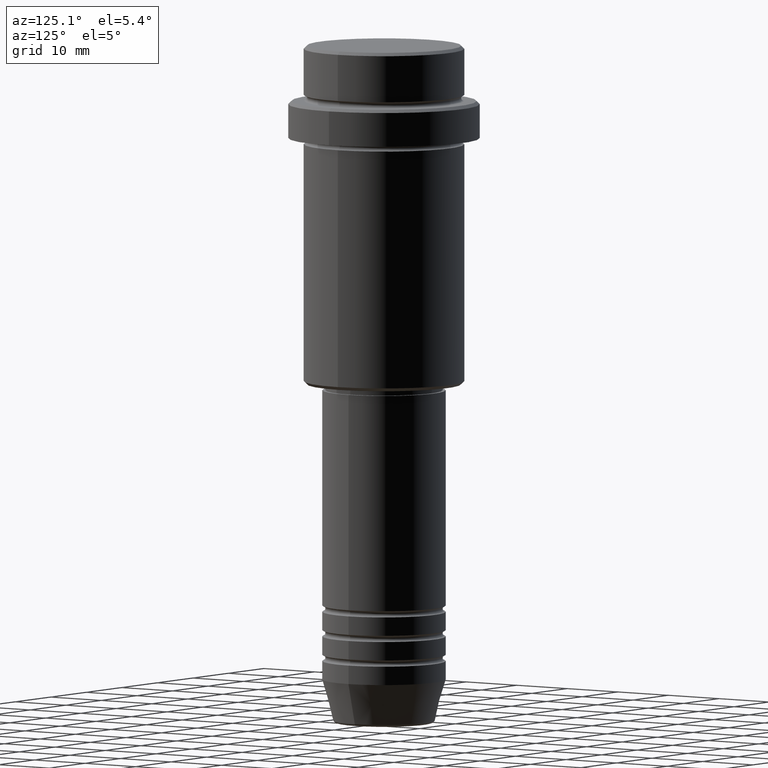
[diagram: clean part render]
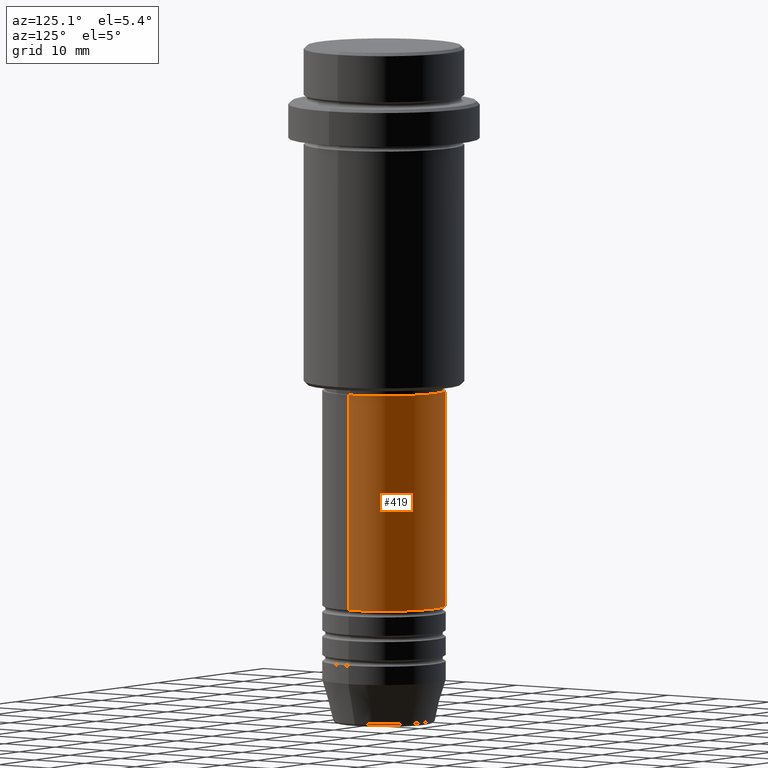
[diagram: same view with one face highlighted and labeled with its STEP entity id]
A machine part, auxiliary view. The second image highlights one B-rep face of the part: STEP entity #419.
In plain terms, the highlighted cylindrical surface (partial cylindrical patch) has radius 10 mm, axis along (-0, -0, 1).
Its self-contained STEP definition (entity closure, byte-faithful):
#9 = CYLINDRICAL_SURFACE ( 'NONE', #279, 10.00000000000000178 ) ;
#31 = ORIENTED_EDGE ( 'NONE', *, *, #951, .F. ) ;
#89 = EDGE_CURVE ( 'NONE', #269, #940, #1092, .T. ) ;
#115 = DIRECTION ( 'NONE',  ( 1.000000000000000000, 0.000000000000000000, 0.000000000000000000 ) ) ;
#163 = VECTOR ( 'NONE', #580, 1000.000000000000000 ) ;
#215 = DIRECTION ( 'NONE',  ( -0.000000000000000000, -0.000000000000000000, 1.000000000000000000 ) ) ;
#217 = CIRCLE ( 'NONE', #1355, 10.00000000000000178 ) ;
#269 = VERTEX_POINT ( 'NONE', #947 ) ;
#279 = AXIS2_PLACEMENT_3D ( 'NONE', #317, #623, #538 ) ;
#301 = AXIS2_PLACEMENT_3D ( 'NONE', #425, #215, #115 ) ;
#317 = CARTESIAN_POINT ( 'NONE',  ( 0.000000000000000000, 0.000000000000000000, 0.000000000000000000 ) ) ;
#408 = CARTESIAN_POINT ( 'NONE',  ( -10.00000000000000000, 1.224646799147353256E-15, -90.99999999999988631 ) ) ;
#419 = ADVANCED_FACE ( 'NONE', ( #640 ), #9, .T. ) ;
#423 = CARTESIAN_POINT ( 'NONE',  ( -10.00000000000000178, 1.224646799147353454E-15, -55.99999999999997868 ) ) ;
#425 = CARTESIAN_POINT ( 'NONE',  ( 0.000000000000000000, 0.000000000000000000, -90.99999999999988631 ) ) ;
#439 = VERTEX_POINT ( 'NONE', #423 ) ;
#524 = CARTESIAN_POINT ( 'NONE',  ( -10.00000000000000178, 1.224646799147353454E-15, 0.000000000000000000 ) ) ;
#537 = EDGE_CURVE ( 'NONE', #269, #562, #1235, .T. ) ;
#538 = DIRECTION ( 'NONE',  ( 1.000000000000000000, 0.000000000000000000, 0.000000000000000000 ) ) ;
#562 = VERTEX_POINT ( 'NONE', #1341 ) ;
#580 = DIRECTION ( 'NONE',  ( -0.000000000000000000, -0.000000000000000000, 1.000000000000000000 ) ) ;
#623 = DIRECTION ( 'NONE',  ( -0.000000000000000000, -0.000000000000000000, 1.000000000000000000 ) ) ;
#640 = FACE_OUTER_BOUND ( 'NONE', #745, .T. ) ;
#717 = LINE ( 'NONE', #524, #775 ) ;
#745 = EDGE_LOOP ( 'NONE', ( #1193, #1398, #31, #1026 ) ) ;
#767 = CARTESIAN_POINT ( 'NONE',  ( 10.00000000000000178, 0.000000000000000000, 0.000000000000000000 ) ) ;
#775 = VECTOR ( 'NONE', #1201, 1000.000000000000000 ) ;
#940 = VERTEX_POINT ( 'NONE', #408 ) ;
#947 = CARTESIAN_POINT ( 'NONE',  ( 10.00000000000000000, 0.000000000000000000, -90.99999999999988631 ) ) ;
#951 = EDGE_CURVE ( 'NONE', #562, #439, #217, .T. ) ;
#982 = DIRECTION ( 'NONE',  ( -0.000000000000000000, -0.000000000000000000, 1.000000000000000000 ) ) ;
#1026 = ORIENTED_EDGE ( 'NONE', *, *, #537, .F. ) ;
#1072 = DIRECTION ( 'NONE',  ( 1.000000000000000000, 0.000000000000000000, 0.000000000000000000 ) ) ;
#1078 = CARTESIAN_POINT ( 'NONE',  ( 0.000000000000000000, 0.000000000000000000, -55.99999999999997868 ) ) ;
#1092 = CIRCLE ( 'NONE', #301, 10.00000000000000000 ) ;
#1193 = ORIENTED_EDGE ( 'NONE', *, *, #89, .T. ) ;
#1201 = DIRECTION ( 'NONE',  ( -0.000000000000000000, -0.000000000000000000, 1.000000000000000000 ) ) ;
#1235 = LINE ( 'NONE', #767, #163 ) ;
#1341 = CARTESIAN_POINT ( 'NONE',  ( 10.00000000000000178, 0.000000000000000000, -55.99999999999997868 ) ) ;
#1355 = AXIS2_PLACEMENT_3D ( 'NONE', #1078, #982, #1072 ) ;
#1398 = ORIENTED_EDGE ( 'NONE', *, *, #1400, .T. ) ;
#1400 = EDGE_CURVE ( 'NONE', #940, #439, #717, .T. ) ;